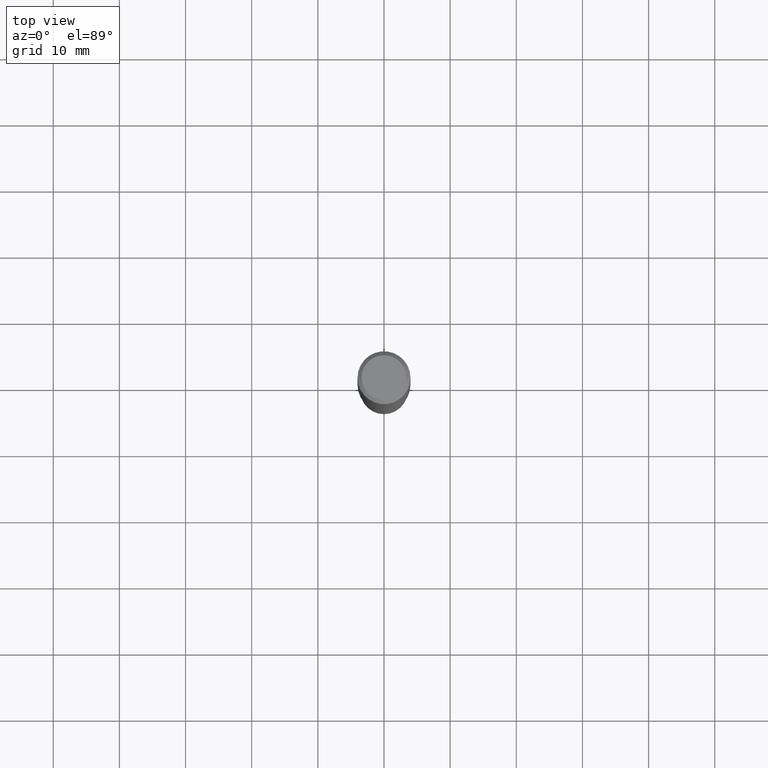
[diagram: clean part render]
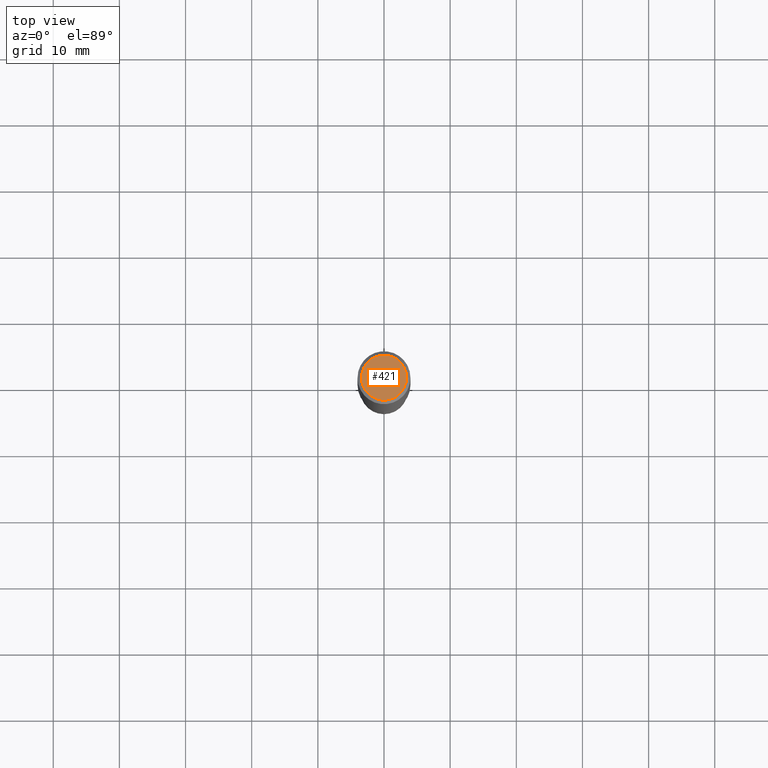
[diagram: same view with one face highlighted and labeled with its STEP entity id]
A machine part, top view. The second image highlights one B-rep face of the part: STEP entity #421.
In plain terms, the highlighted planar face has unit normal (0, -0, -1).
Its self-contained STEP definition (entity closure, byte-faithful):
#7 = CARTESIAN_POINT ( 'NONE',  ( 0.1338749999999999940, -1.040731925365424925E-15, 4.101342130351390035E-18 ) ) ;
#10 = CIRCLE ( 'NONE', #432, 0.1338749999999999940 ) ;
#13 = CARTESIAN_POINT ( 'NONE',  ( -5.014852121625163022E-47, 7.159879756154476955E-33, 2.050671065172241055E-18 ) ) ;
#26 = DIRECTION ( 'NONE',  ( 2.438088387897960049E-29, -3.491481338843145188E-15, -1.000000000000000000 ) ) ;
#70 = DIRECTION ( 'NONE',  ( -1.000000000000000000, 6.982962677686265922E-15, -4.876176775795935793E-29 ) ) ;
#97 = DIRECTION ( 'NONE',  ( -2.445468806185136597E-29, 3.491481338843145583E-15, 1.000000000000000000 ) ) ;
#99 = CARTESIAN_POINT ( 'NONE',  ( -1.002970424325032604E-46, 1.431975951230895391E-32, 4.101342130344482109E-18 ) ) ;
#100 = CARTESIAN_POINT ( 'NONE',  ( -1.002970424325032604E-46, 1.431975951230895391E-32, 4.101342130344482109E-18 ) ) ;
#132 = EDGE_CURVE ( 'NONE', #240, #460, #10, .T. ) ;
#167 = CARTESIAN_POINT ( 'NONE',  ( -0.1338749999999999940, 9.760872517903331886E-16, 4.101342130337800673E-18 ) ) ;
#194 = AXIS2_PLACEMENT_3D ( 'NONE', #100, #97, #246 ) ;
#202 = DIRECTION ( 'NONE',  ( -2.445468806185136597E-29, 3.491481338843145583E-15, 1.000000000000000000 ) ) ;
#240 = VERTEX_POINT ( 'NONE', #7 ) ;
#246 = DIRECTION ( 'NONE',  ( 1.000000000000000000, -6.982962677686266711E-15, 4.876170806578254279E-29 ) ) ;
#287 = CIRCLE ( 'NONE', #194, 0.1338749999999999940 ) ;
#296 = AXIS2_PLACEMENT_3D ( 'NONE', #13, #26, #70 ) ;
#301 = ORIENTED_EDGE ( 'NONE', *, *, #132, .T. ) ;
#340 = FACE_OUTER_BOUND ( 'NONE', #463, .T. ) ;
#356 = DIRECTION ( 'NONE',  ( 1.000000000000000000, -6.982962677686266711E-15, 4.876170806578254279E-29 ) ) ;
#378 = PLANE ( 'NONE',  #296 ) ;
#390 = ORIENTED_EDGE ( 'NONE', *, *, #431, .T. ) ;
#421 = ADVANCED_FACE ( 'NONE', ( #340 ), #378, .F. ) ;
#431 = EDGE_CURVE ( 'NONE', #460, #240, #287, .T. ) ;
#432 = AXIS2_PLACEMENT_3D ( 'NONE', #99, #202, #356 ) ;
#460 = VERTEX_POINT ( 'NONE', #167 ) ;
#463 = EDGE_LOOP ( 'NONE', ( #390, #301 ) ) ;